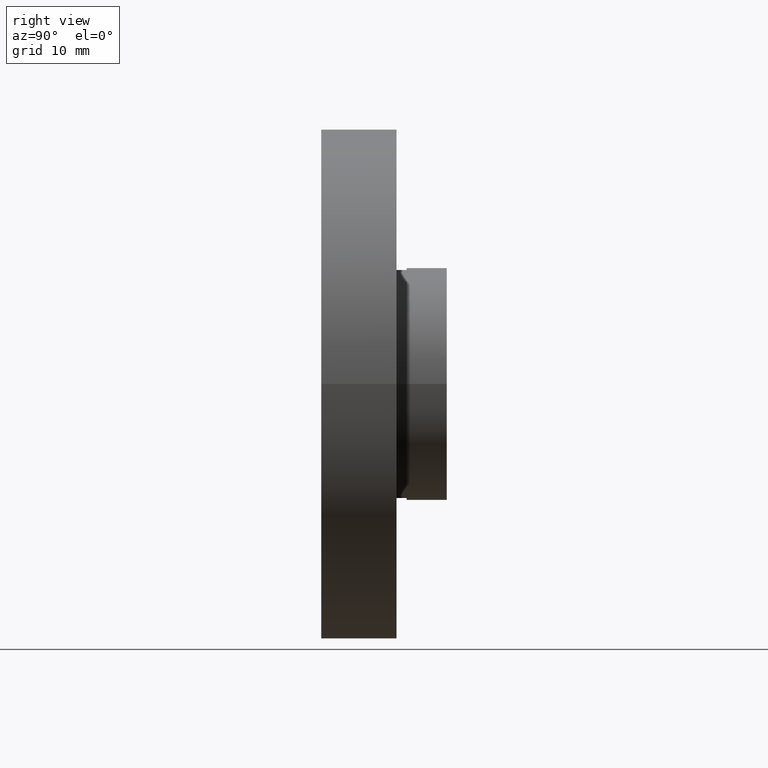
[diagram: clean part render]
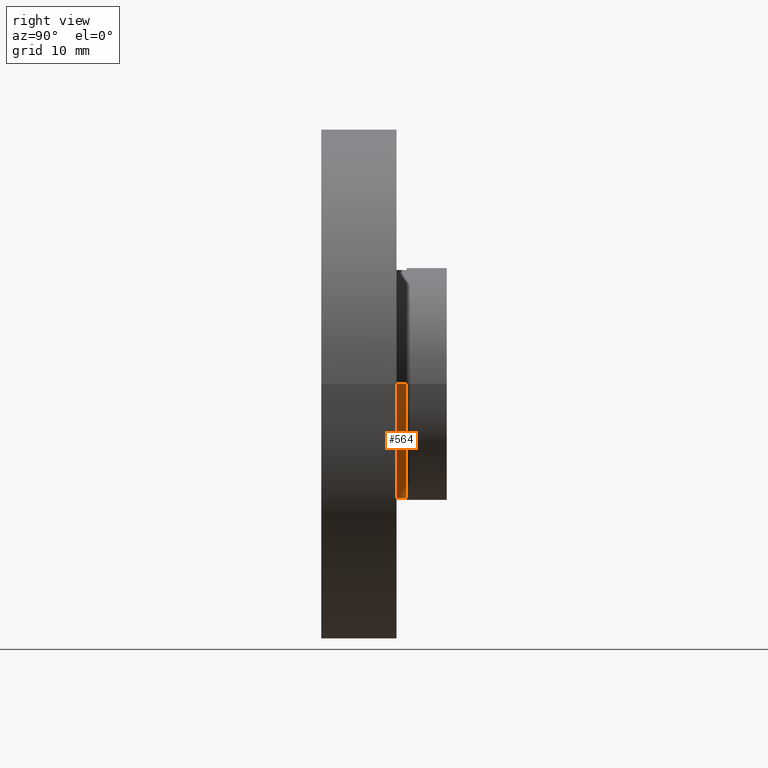
[diagram: same view with one face highlighted and labeled with its STEP entity id]
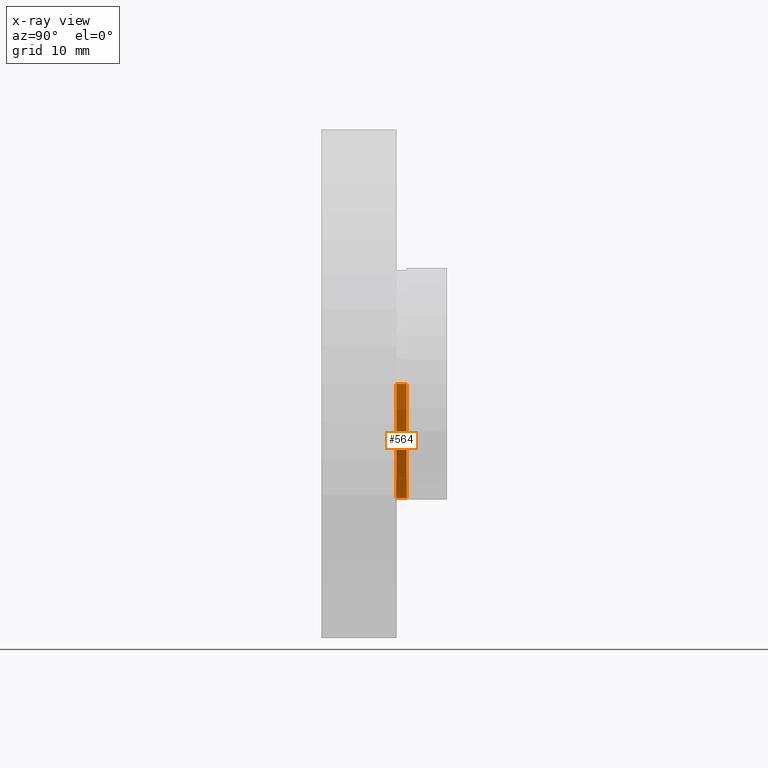
[diagram: x-ray of the same camera — body ghosted, the highlighted face saturated]
A machine part, right view. The second image highlights one B-rep face of the part: STEP entity #564.
The next image is the same camera in x-ray: the body ghosted, the highlighted face saturated — about 0% of this face is hidden behind the body in this view.
In plain terms, the highlighted cylindrical surface (partial cylindrical patch) has radius 11.35 mm, axis along (-0, 1, -0).
Its self-contained STEP definition (entity closure, byte-faithful):
#17 = AXIS2_PLACEMENT_3D ( 'NONE', #172, #174, #48 ) ;
#32 = VECTOR ( 'NONE', #529, 1000.000000000000000 ) ;
#36 = VERTEX_POINT ( 'NONE', #585 ) ;
#42 = CIRCLE ( 'NONE', #122, 11.35000000000000000 ) ;
#48 = DIRECTION ( 'NONE',  ( -1.000000000000000000, 0.0000000000000000000, 0.0000000000000000000 ) ) ;
#63 = CYLINDRICAL_SURFACE ( 'NONE', #17, 11.35000000000000000 ) ;
#122 = AXIS2_PLACEMENT_3D ( 'NONE', #388, #366, #467 ) ;
#128 = CARTESIAN_POINT ( 'NONE',  ( -11.35000000000000000, 16.88601823708207700, 0.0000000000000000000 ) ) ;
#170 = VERTEX_POINT ( 'NONE', #347 ) ;
#172 = CARTESIAN_POINT ( 'NONE',  ( 0.0000000000000000000, 16.88601823708207700, 0.0000000000000000000 ) ) ;
#174 = DIRECTION ( 'NONE',  ( -1.224646799147351000E-016, 1.000000000000000000, -0.0000000000000000000 ) ) ;
#187 = VECTOR ( 'NONE', #530, 1000.000000000000000 ) ;
#204 = CARTESIAN_POINT ( 'NONE',  ( 11.35000000000000000, 16.88601823708207700, 1.389974117032245900E-015 ) ) ;
#207 = EDGE_CURVE ( 'NONE', #36, #170, #42, .T. ) ;
#223 = CARTESIAN_POINT ( 'NONE',  ( 11.35000000000000100, 7.500000000000000000, 1.389974117032245900E-015 ) ) ;
#245 = ORIENTED_EDGE ( 'NONE', *, *, #407, .F. ) ;
#284 = LINE ( 'NONE', #128, #32 ) ;
#293 = ORIENTED_EDGE ( 'NONE', *, *, #307, .T. ) ;
#307 = EDGE_CURVE ( 'NONE', #462, #433, #469, .T. ) ;
#347 = CARTESIAN_POINT ( 'NONE',  ( -11.34999999999999800, 8.499999999999996400, 0.0000000000000000000 ) ) ;
#365 = DIRECTION ( 'NONE',  ( -1.000000000000000000, -1.528390727732869900E-016, 0.0000000000000000000 ) ) ;
#366 = DIRECTION ( 'NONE',  ( -1.224646799147351000E-016, 1.000000000000000000, -0.0000000000000000000 ) ) ;
#370 = LINE ( 'NONE', #204, #187 ) ;
#380 = ORIENTED_EDGE ( 'NONE', *, *, #207, .F. ) ;
#388 = CARTESIAN_POINT ( 'NONE',  ( 1.026991039163387700E-015, 8.499999999999998200, 0.0000000000000000000 ) ) ;
#407 = EDGE_CURVE ( 'NONE', #462, #36, #370, .T. ) ;
#423 = CARTESIAN_POINT ( 'NONE',  ( -11.34999999999999800, 7.499999999999996400, 0.0000000000000000000 ) ) ;
#433 = VERTEX_POINT ( 'NONE', #423 ) ;
#444 = AXIS2_PLACEMENT_3D ( 'NONE', #599, #516, #365 ) ;
#462 = VERTEX_POINT ( 'NONE', #223 ) ;
#467 = DIRECTION ( 'NONE',  ( -1.000000000000000000, -1.528390727732869900E-016, 0.0000000000000000000 ) ) ;
#469 = CIRCLE ( 'NONE', #444, 11.35000000000000000 ) ;
#472 = ORIENTED_EDGE ( 'NONE', *, *, #612, .T. ) ;
#516 = DIRECTION ( 'NONE',  ( -1.224646799147351000E-016, 1.000000000000000000, -0.0000000000000000000 ) ) ;
#529 = DIRECTION ( 'NONE',  ( -1.224646799147351000E-016, 1.000000000000000000, -0.0000000000000000000 ) ) ;
#530 = DIRECTION ( 'NONE',  ( -1.224646799147351000E-016, 1.000000000000000000, -0.0000000000000000000 ) ) ;
#564 = ADVANCED_FACE ( 'NONE', ( #622 ), #63, .T. ) ;
#585 = CARTESIAN_POINT ( 'NONE',  ( 11.35000000000000100, 8.500000000000000000, 1.389974117032245900E-015 ) ) ;
#599 = CARTESIAN_POINT ( 'NONE',  ( 1.149455719078122700E-015, 7.499999999999998200, 0.0000000000000000000 ) ) ;
#601 = EDGE_LOOP ( 'NONE', ( #245, #293, #472, #380 ) ) ;
#612 = EDGE_CURVE ( 'NONE', #433, #170, #284, .T. ) ;
#622 = FACE_OUTER_BOUND ( 'NONE', #601, .T. ) ;